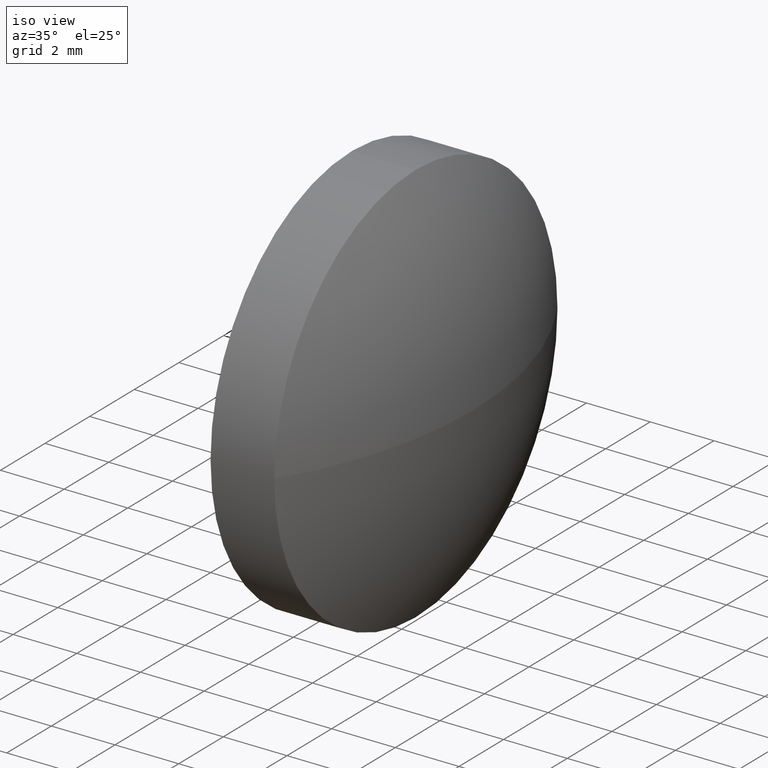
[diagram: clean part render]
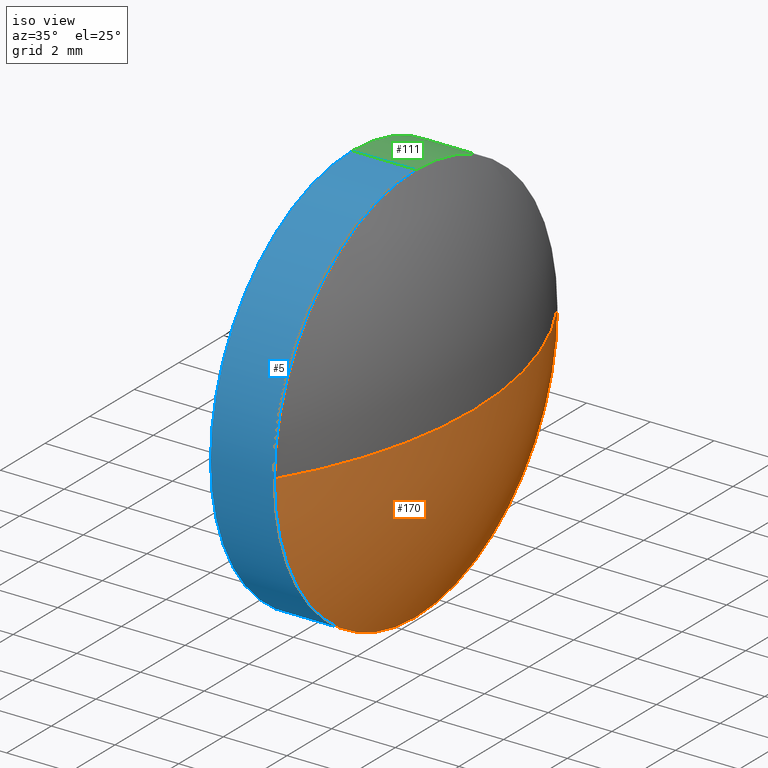
[diagram: same view with three faces highlighted in distinct colors, each labeled with its STEP entity id]
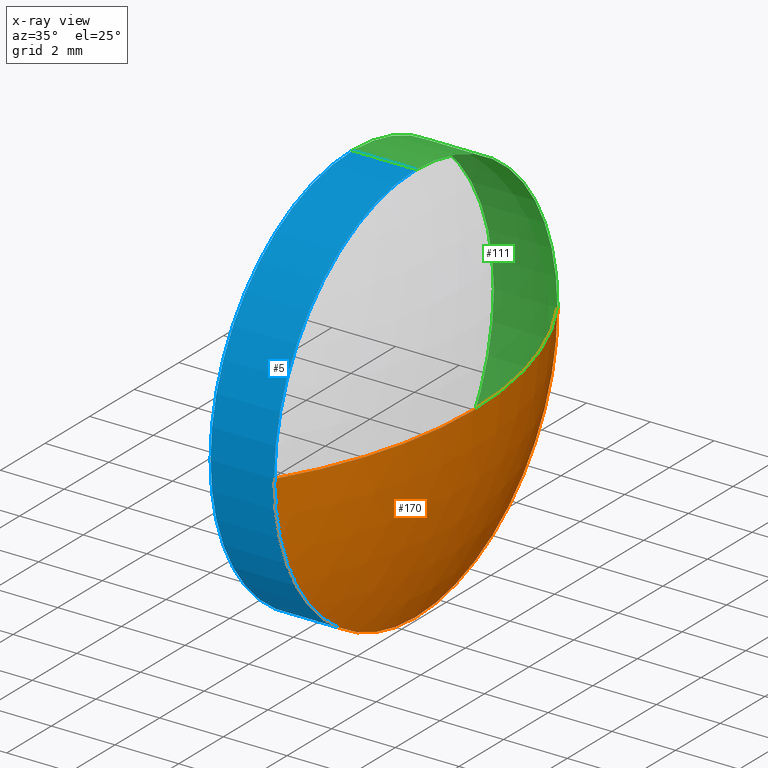
[diagram: x-ray of the same camera — body ghosted, the three highlighted faces saturated]
A machine part, iso view with three faces highlighted in distinct colors.
The next image is the same camera in x-ray (body ghosted, the three faces saturated) — at least one of them is partly hidden behind the body in this view.
Their STEP definitions:

[orange] entity #170 — the highlighted spherical surface has radius 12.101 mm.
#1 = AXIS2_PLACEMENT_3D ( 'NONE', #150, #38, #118 ) ;
#2 = SPHERICAL_SURFACE ( 'NONE', #234, 12.10096423222025500 ) ;
#3 = CARTESIAN_POINT ( 'NONE',  ( 33.92811979796815800, 24.30805651159239700, 0.0000000000000000000 ) ) ;
#6 = DIRECTION ( 'NONE',  ( 0.0000000000000000000, 0.0000000000000000000, -1.000000000000000000 ) ) ;
#24 = CIRCLE ( 'NONE', #341, 12.10096423222025500 ) ;
#30 = CARTESIAN_POINT ( 'NONE',  ( 33.92811979796815800, 24.30805651159239700, 0.0000000000000000000 ) ) ;
#34 = CARTESIAN_POINT ( 'NONE',  ( 44.22913117304555200, 30.65805651159239500, 7.776507174585689200E-016 ) ) ;
#36 = VERTEX_POINT ( 'NONE', #34 ) ;
#38 = DIRECTION ( 'NONE',  ( -1.000000000000000000, -0.0000000000000000000, -0.0000000000000000000 ) ) ;
#66 = DIRECTION ( 'NONE',  ( 0.0000000000000000000, 0.0000000000000000000, 1.000000000000000000 ) ) ;
#69 = DIRECTION ( 'NONE',  ( -1.000000000000000000, -0.0000000000000000000, -0.0000000000000000000 ) ) ;
#80 = DIRECTION ( 'NONE',  ( 0.0000000000000000000, -1.000000000000000000, 0.0000000000000000000 ) ) ;
#86 = CIRCLE ( 'NONE', #161, 12.10096423222025500 ) ;
#87 = CARTESIAN_POINT ( 'NONE',  ( 44.22913117304555200, 24.30805651159239000, -6.349999999999997900 ) ) ;
#91 = CARTESIAN_POINT ( 'NONE',  ( 44.22913117304555200, 24.30805651159239000, 0.0000000000000000000 ) ) ;
#94 = ORIENTED_EDGE ( 'NONE', *, *, #106, .T. ) ;
#96 = AXIS2_PLACEMENT_3D ( 'NONE', #91, #69, #66 ) ;
#106 = EDGE_CURVE ( 'NONE', #327, #133, #86, .T. ) ;
#108 = DIRECTION ( 'NONE',  ( -1.000000000000000000, 0.0000000000000000000, 0.0000000000000000000 ) ) ;
#118 = DIRECTION ( 'NONE',  ( 0.0000000000000000000, 0.0000000000000000000, 1.000000000000000000 ) ) ;
#125 = EDGE_CURVE ( 'NONE', #327, #36, #24, .T. ) ;
#128 = EDGE_LOOP ( 'NONE', ( #296, #94, #307, #323 ) ) ;
#133 = VERTEX_POINT ( 'NONE', #137 ) ;
#137 = CARTESIAN_POINT ( 'NONE',  ( 44.22913117304555200, 17.95805651159239200, 0.0000000000000000000 ) ) ;
#150 = CARTESIAN_POINT ( 'NONE',  ( 44.22913117304555200, 24.30805651159239000, 0.0000000000000000000 ) ) ;
#161 = AXIS2_PLACEMENT_3D ( 'NONE', #3, #6, #108 ) ;
#165 = CIRCLE ( 'NONE', #96, 6.349999999999997900 ) ;
#167 = DIRECTION ( 'NONE',  ( 0.0000000000000000000, -1.224646799147353200E-016, 1.000000000000000000 ) ) ;
#170 = ADVANCED_FACE ( 'NONE', ( #321 ), #2, .T. ) ;
#194 = DIRECTION ( 'NONE',  ( 0.0000000000000000000, -1.000000000000000000, -1.224646799147353200E-016 ) ) ;
#228 = DIRECTION ( 'NONE',  ( 0.0000000000000000000, 0.0000000000000000000, 1.000000000000000000 ) ) ;
#234 = AXIS2_PLACEMENT_3D ( 'NONE', #30, #228, #80 ) ;
#246 = CIRCLE ( 'NONE', #1, 6.349999999999997900 ) ;
#258 = EDGE_CURVE ( 'NONE', #320, #133, #165, .T. ) ;
#265 = EDGE_CURVE ( 'NONE', #36, #320, #246, .T. ) ;
#273 = CARTESIAN_POINT ( 'NONE',  ( 33.92811979796815800, 24.30805651159239700, 0.0000000000000000000 ) ) ;
#296 = ORIENTED_EDGE ( 'NONE', *, *, #125, .F. ) ;
#307 = ORIENTED_EDGE ( 'NONE', *, *, #258, .F. ) ;
#320 = VERTEX_POINT ( 'NONE', #87 ) ;
#321 = FACE_OUTER_BOUND ( 'NONE', #128, .T. ) ;
#323 = ORIENTED_EDGE ( 'NONE', *, *, #265, .F. ) ;
#327 = VERTEX_POINT ( 'NONE', #330 ) ;
#330 = CARTESIAN_POINT ( 'NONE',  ( 46.02908403018841500, 24.30805651159239700, 0.0000000000000000000 ) ) ;
#341 = AXIS2_PLACEMENT_3D ( 'NONE', #273, #167, #194 ) ;

[blue] entity #5 — the highlighted cylindrical surface (partial cylindrical patch) has radius 6.35 mm, axis along (-1, -0, -0).
#4 = AXIS2_PLACEMENT_3D ( 'NONE', #298, #65, #247 ) ;
#5 = ADVANCED_FACE ( 'NONE', ( #72 ), #266, .T. ) ;
#15 = ORIENTED_EDGE ( 'NONE', *, *, #49, .F. ) ;
#26 = AXIS2_PLACEMENT_3D ( 'NONE', #202, #196, #198 ) ;
#27 = CARTESIAN_POINT ( 'NONE',  ( 39.65270067541857900, 24.30805651159239000, -6.349999999999997900 ) ) ;
#29 = ORIENTED_EDGE ( 'NONE', *, *, #190, .T. ) ;
#37 = CARTESIAN_POINT ( 'NONE',  ( 42.22906260161698100, 24.30805651159239000, 6.349999999999997900 ) ) ;
#41 = AXIS2_PLACEMENT_3D ( 'NONE', #203, #236, #181 ) ;
#49 = EDGE_CURVE ( 'NONE', #99, #191, #252, .T. ) ;
#54 = EDGE_CURVE ( 'NONE', #133, #104, #180, .T. ) ;
#57 = DIRECTION ( 'NONE',  ( -1.000000000000000000, -0.0000000000000000000, -0.0000000000000000000 ) ) ;
#60 = DIRECTION ( 'NONE',  ( -1.000000000000000000, -0.0000000000000000000, -0.0000000000000000000 ) ) ;
#63 = ORIENTED_EDGE ( 'NONE', *, *, #54, .T. ) ;
#65 = DIRECTION ( 'NONE',  ( -1.000000000000000000, -0.0000000000000000000, -0.0000000000000000000 ) ) ;
#66 = DIRECTION ( 'NONE',  ( 0.0000000000000000000, 0.0000000000000000000, 1.000000000000000000 ) ) ;
#69 = DIRECTION ( 'NONE',  ( -1.000000000000000000, -0.0000000000000000000, -0.0000000000000000000 ) ) ;
#70 = CIRCLE ( 'NONE', #41, 6.349999999999997900 ) ;
#72 = FACE_OUTER_BOUND ( 'NONE', #138, .T. ) ;
#78 = EDGE_CURVE ( 'NONE', #320, #99, #274, .T. ) ;
#87 = CARTESIAN_POINT ( 'NONE',  ( 44.22913117304555200, 24.30805651159239000, -6.349999999999997900 ) ) ;
#91 = CARTESIAN_POINT ( 'NONE',  ( 44.22913117304555200, 24.30805651159239000, 0.0000000000000000000 ) ) ;
#96 = AXIS2_PLACEMENT_3D ( 'NONE', #91, #69, #66 ) ;
#99 = VERTEX_POINT ( 'NONE', #134 ) ;
#104 = VERTEX_POINT ( 'NONE', #329 ) ;
#119 = ORIENTED_EDGE ( 'NONE', *, *, #218, .F. ) ;
#123 = VECTOR ( 'NONE', #57, 1000.000000000000000 ) ;
#133 = VERTEX_POINT ( 'NONE', #137 ) ;
#134 = CARTESIAN_POINT ( 'NONE',  ( 42.22906260161698100, 24.30805651159239000, -6.349999999999997900 ) ) ;
#135 = DIRECTION ( 'NONE',  ( 0.0000000000000000000, 0.0000000000000000000, 1.000000000000000000 ) ) ;
#137 = CARTESIAN_POINT ( 'NONE',  ( 44.22913117304555200, 17.95805651159239200, 0.0000000000000000000 ) ) ;
#138 = EDGE_LOOP ( 'NONE', ( #248, #312, #63, #29, #119, #15 ) ) ;
#142 = AXIS2_PLACEMENT_3D ( 'NONE', #297, #249, #135 ) ;
#165 = CIRCLE ( 'NONE', #96, 6.349999999999997900 ) ;
#180 = CIRCLE ( 'NONE', #26, 6.349999999999997900 ) ;
#181 = DIRECTION ( 'NONE',  ( 0.0000000000000000000, 0.0000000000000000000, 1.000000000000000000 ) ) ;
#190 = EDGE_CURVE ( 'NONE', #104, #317, #232, .T. ) ;
#191 = VERTEX_POINT ( 'NONE', #269 ) ;
#196 = DIRECTION ( 'NONE',  ( -1.000000000000000000, -0.0000000000000000000, -0.0000000000000000000 ) ) ;
#198 = DIRECTION ( 'NONE',  ( 0.0000000000000000000, 0.0000000000000000000, 1.000000000000000000 ) ) ;
#202 = CARTESIAN_POINT ( 'NONE',  ( 44.22913117304555200, 24.30805651159239000, 0.0000000000000000000 ) ) ;
#203 = CARTESIAN_POINT ( 'NONE',  ( 42.22906260161698100, 24.30805651159239000, 0.0000000000000000000 ) ) ;
#218 = EDGE_CURVE ( 'NONE', #191, #317, #70, .T. ) ;
#224 = VECTOR ( 'NONE', #60, 1000.000000000000000 ) ;
#232 = LINE ( 'NONE', #267, #224 ) ;
#236 = DIRECTION ( 'NONE',  ( -1.000000000000000000, -0.0000000000000000000, -0.0000000000000000000 ) ) ;
#247 = DIRECTION ( 'NONE',  ( 0.0000000000000000000, 0.0000000000000000000, 1.000000000000000000 ) ) ;
#248 = ORIENTED_EDGE ( 'NONE', *, *, #78, .F. ) ;
#249 = DIRECTION ( 'NONE',  ( -1.000000000000000000, -0.0000000000000000000, -0.0000000000000000000 ) ) ;
#252 = CIRCLE ( 'NONE', #4, 6.349999999999997900 ) ;
#258 = EDGE_CURVE ( 'NONE', #320, #133, #165, .T. ) ;
#266 = CYLINDRICAL_SURFACE ( 'NONE', #142, 6.349999999999997900 ) ;
#267 = CARTESIAN_POINT ( 'NONE',  ( 39.65270067541857900, 24.30805651159239000, 6.349999999999997900 ) ) ;
#269 = CARTESIAN_POINT ( 'NONE',  ( 42.22906260161698100, 17.95805651159238900, -7.776507174585690200E-016 ) ) ;
#274 = LINE ( 'NONE', #27, #123 ) ;
#297 = CARTESIAN_POINT ( 'NONE',  ( 39.65270067541857900, 24.30805651159239000, 0.0000000000000000000 ) ) ;
#298 = CARTESIAN_POINT ( 'NONE',  ( 42.22906260161698100, 24.30805651159239000, 0.0000000000000000000 ) ) ;
#312 = ORIENTED_EDGE ( 'NONE', *, *, #258, .T. ) ;
#317 = VERTEX_POINT ( 'NONE', #37 ) ;
#320 = VERTEX_POINT ( 'NONE', #87 ) ;
#329 = CARTESIAN_POINT ( 'NONE',  ( 44.22913117304555200, 24.30805651159239000, 6.349999999999997900 ) ) ;

[green] entity #111 — the highlighted cylindrical surface (partial cylindrical patch) has radius 6.35 mm, axis along (-1, -0, -0).
#1 = AXIS2_PLACEMENT_3D ( 'NONE', #150, #38, #118 ) ;
#7 = CARTESIAN_POINT ( 'NONE',  ( 39.65270067541857900, 24.30805651159239000, 0.0000000000000000000 ) ) ;
#18 = AXIS2_PLACEMENT_3D ( 'NONE', #84, #305, #229 ) ;
#27 = CARTESIAN_POINT ( 'NONE',  ( 39.65270067541857900, 24.30805651159239000, -6.349999999999997900 ) ) ;
#34 = CARTESIAN_POINT ( 'NONE',  ( 44.22913117304555200, 30.65805651159239500, 7.776507174585689200E-016 ) ) ;
#36 = VERTEX_POINT ( 'NONE', #34 ) ;
#37 = CARTESIAN_POINT ( 'NONE',  ( 42.22906260161698100, 24.30805651159239000, 6.349999999999997900 ) ) ;
#38 = DIRECTION ( 'NONE',  ( -1.000000000000000000, -0.0000000000000000000, -0.0000000000000000000 ) ) ;
#40 = DIRECTION ( 'NONE',  ( -1.000000000000000000, -0.0000000000000000000, -0.0000000000000000000 ) ) ;
#42 = EDGE_LOOP ( 'NONE', ( #333, #46, #56, #112, #214, #255 ) ) ;
#43 = CARTESIAN_POINT ( 'NONE',  ( 42.22906260161698100, 30.65805651159238800, 0.0000000000000000000 ) ) ;
#46 = ORIENTED_EDGE ( 'NONE', *, *, #78, .T. ) ;
#56 = ORIENTED_EDGE ( 'NONE', *, *, #275, .F. ) ;
#57 = DIRECTION ( 'NONE',  ( -1.000000000000000000, -0.0000000000000000000, -0.0000000000000000000 ) ) ;
#60 = DIRECTION ( 'NONE',  ( -1.000000000000000000, -0.0000000000000000000, -0.0000000000000000000 ) ) ;
#64 = DIRECTION ( 'NONE',  ( -1.000000000000000000, -0.0000000000000000000, -0.0000000000000000000 ) ) ;
#78 = EDGE_CURVE ( 'NONE', #320, #99, #274, .T. ) ;
#84 = CARTESIAN_POINT ( 'NONE',  ( 42.22906260161698100, 24.30805651159239000, 0.0000000000000000000 ) ) ;
#87 = CARTESIAN_POINT ( 'NONE',  ( 44.22913117304555200, 24.30805651159239000, -6.349999999999997900 ) ) ;
#90 = CIRCLE ( 'NONE', #18, 6.349999999999997900 ) ;
#99 = VERTEX_POINT ( 'NONE', #134 ) ;
#103 = CIRCLE ( 'NONE', #186, 6.349999999999997900 ) ;
#104 = VERTEX_POINT ( 'NONE', #329 ) ;
#110 = CARTESIAN_POINT ( 'NONE',  ( 44.22913117304555200, 24.30805651159239000, 0.0000000000000000000 ) ) ;
#111 = ADVANCED_FACE ( 'NONE', ( #240 ), #201, .T. ) ;
#112 = ORIENTED_EDGE ( 'NONE', *, *, #311, .F. ) ;
#117 = AXIS2_PLACEMENT_3D ( 'NONE', #277, #40, #334 ) ;
#118 = DIRECTION ( 'NONE',  ( 0.0000000000000000000, 0.0000000000000000000, 1.000000000000000000 ) ) ;
#123 = VECTOR ( 'NONE', #57, 1000.000000000000000 ) ;
#134 = CARTESIAN_POINT ( 'NONE',  ( 42.22906260161698100, 24.30805651159239000, -6.349999999999997900 ) ) ;
#140 = DIRECTION ( 'NONE',  ( 0.0000000000000000000, 0.0000000000000000000, 1.000000000000000000 ) ) ;
#150 = CARTESIAN_POINT ( 'NONE',  ( 44.22913117304555200, 24.30805651159239000, 0.0000000000000000000 ) ) ;
#172 = DIRECTION ( 'NONE',  ( -1.000000000000000000, -0.0000000000000000000, -0.0000000000000000000 ) ) ;
#186 = AXIS2_PLACEMENT_3D ( 'NONE', #110, #64, #270 ) ;
#190 = EDGE_CURVE ( 'NONE', #104, #317, #232, .T. ) ;
#192 = EDGE_CURVE ( 'NONE', #104, #36, #103, .T. ) ;
#201 = CYLINDRICAL_SURFACE ( 'NONE', #223, 6.349999999999997900 ) ;
#214 = ORIENTED_EDGE ( 'NONE', *, *, #190, .F. ) ;
#219 = CIRCLE ( 'NONE', #117, 6.349999999999997900 ) ;
#223 = AXIS2_PLACEMENT_3D ( 'NONE', #7, #172, #140 ) ;
#224 = VECTOR ( 'NONE', #60, 1000.000000000000000 ) ;
#229 = DIRECTION ( 'NONE',  ( 0.0000000000000000000, 0.0000000000000000000, 1.000000000000000000 ) ) ;
#232 = LINE ( 'NONE', #267, #224 ) ;
#240 = FACE_OUTER_BOUND ( 'NONE', #42, .T. ) ;
#246 = CIRCLE ( 'NONE', #1, 6.349999999999997900 ) ;
#255 = ORIENTED_EDGE ( 'NONE', *, *, #192, .T. ) ;
#265 = EDGE_CURVE ( 'NONE', #36, #320, #246, .T. ) ;
#267 = CARTESIAN_POINT ( 'NONE',  ( 39.65270067541857900, 24.30805651159239000, 6.349999999999997900 ) ) ;
#270 = DIRECTION ( 'NONE',  ( 0.0000000000000000000, 0.0000000000000000000, 1.000000000000000000 ) ) ;
#274 = LINE ( 'NONE', #27, #123 ) ;
#275 = EDGE_CURVE ( 'NONE', #290, #99, #90, .T. ) ;
#277 = CARTESIAN_POINT ( 'NONE',  ( 42.22906260161698100, 24.30805651159239000, 0.0000000000000000000 ) ) ;
#290 = VERTEX_POINT ( 'NONE', #43 ) ;
#305 = DIRECTION ( 'NONE',  ( -1.000000000000000000, -0.0000000000000000000, -0.0000000000000000000 ) ) ;
#311 = EDGE_CURVE ( 'NONE', #317, #290, #219, .T. ) ;
#317 = VERTEX_POINT ( 'NONE', #37 ) ;
#320 = VERTEX_POINT ( 'NONE', #87 ) ;
#329 = CARTESIAN_POINT ( 'NONE',  ( 44.22913117304555200, 24.30805651159239000, 6.349999999999997900 ) ) ;
#333 = ORIENTED_EDGE ( 'NONE', *, *, #265, .T. ) ;
#334 = DIRECTION ( 'NONE',  ( 0.0000000000000000000, 0.0000000000000000000, 1.000000000000000000 ) ) ;